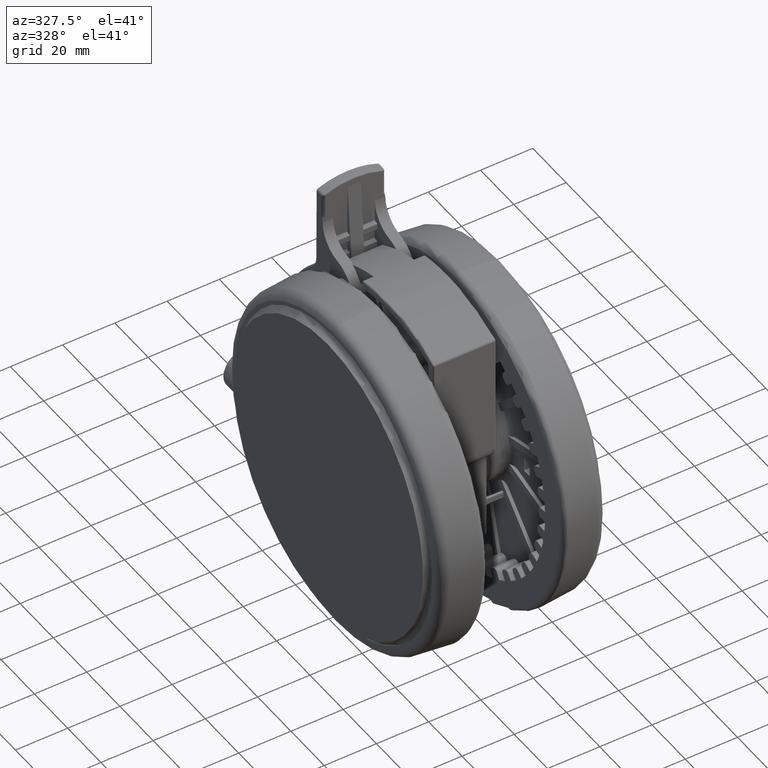
[diagram: clean part render]
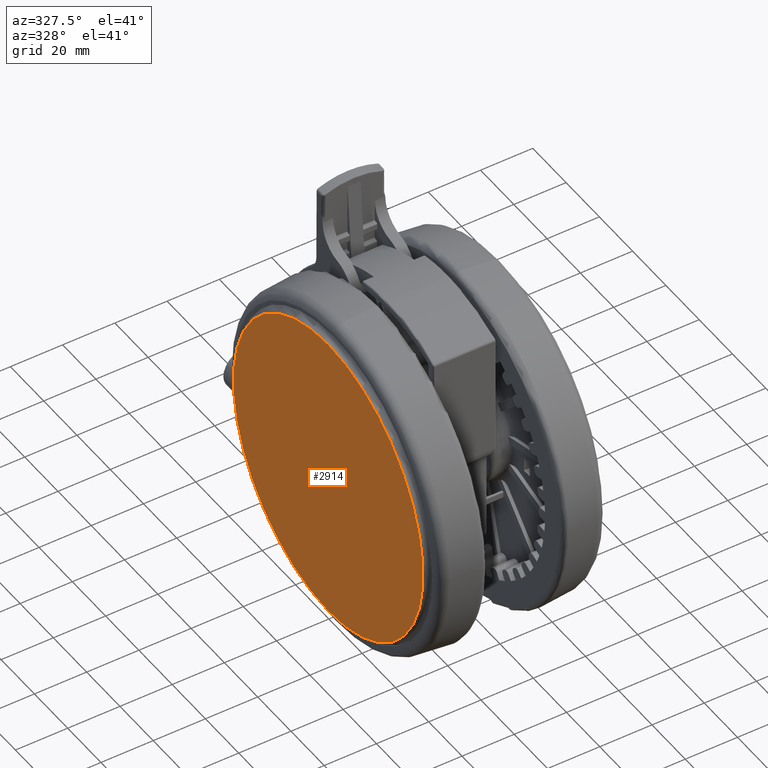
[diagram: same view with one face highlighted and labeled with its STEP entity id]
A machine part, auxiliary view. The second image highlights one B-rep face of the part: STEP entity #2914.
In plain terms, the highlighted planar face has unit normal (-1, 0, 0).
Its self-contained STEP definition (entity closure, byte-faithful):
#1118 = DIRECTION ( 'NONE',  ( -1.000000000000000000, 0.0000000000000000000, 0.0000000000000000000 ) ) ;
#1432 = FACE_OUTER_BOUND ( 'NONE', #32570, .T. ) ;
#2914 = ADVANCED_FACE ( 'NONE', ( #1432 ), #26150, .T. ) ;
#5489 = DIRECTION ( 'NONE',  ( 0.0000000000000000000, 0.0000000000000000000, -1.000000000000000000 ) ) ;
#7516 = EDGE_CURVE ( 'NONE', #37641, #30701, #28833, .T. ) ;
#20729 = DIRECTION ( 'NONE',  ( 0.0000000000000000000, 0.0000000000000000000, -1.000000000000000000 ) ) ;
#25122 = AXIS2_PLACEMENT_3D ( 'NONE', #43172, #5489, #49443 ) ;
#26150 = PLANE ( 'NONE',  #37821 ) ;
#27020 = CIRCLE ( 'NONE', #25122, 57.00000000000000000 ) ;
#28833 = CIRCLE ( 'NONE', #62778, 57.00000000000000000 ) ;
#30701 = VERTEX_POINT ( 'NONE', #46132 ) ;
#32504 = CARTESIAN_POINT ( 'NONE',  ( 0.0000000000000000000, 0.0000000000000000000, -68.20000000000008800 ) ) ;
#32570 = EDGE_LOOP ( 'NONE', ( #39375, #49202 ) ) ;
#37641 = VERTEX_POINT ( 'NONE', #53571 ) ;
#37821 = AXIS2_PLACEMENT_3D ( 'NONE', #32504, #38833, #1118 ) ;
#38833 = DIRECTION ( 'NONE',  ( 0.0000000000000000000, 0.0000000000000000000, -1.000000000000000000 ) ) ;
#39375 = ORIENTED_EDGE ( 'NONE', *, *, #52255, .T. ) ;
#43172 = CARTESIAN_POINT ( 'NONE',  ( 0.0000000000000000000, 0.0000000000000000000, -68.20000000000008800 ) ) ;
#46132 = CARTESIAN_POINT ( 'NONE',  ( 57.00000000000000000, 0.0000000000000000000, -68.20000000000008800 ) ) ;
#49202 = ORIENTED_EDGE ( 'NONE', *, *, #7516, .T. ) ;
#49443 = DIRECTION ( 'NONE',  ( -1.000000000000000000, 0.0000000000000000000, 0.0000000000000000000 ) ) ;
#52255 = EDGE_CURVE ( 'NONE', #30701, #37641, #27020, .T. ) ;
#53571 = CARTESIAN_POINT ( 'NONE',  ( -57.00000000000000000, 6.980486755139912900E-015, -68.20000000000008800 ) ) ;
#58365 = CARTESIAN_POINT ( 'NONE',  ( 0.0000000000000000000, 0.0000000000000000000, -68.20000000000008800 ) ) ;
#62778 = AXIS2_PLACEMENT_3D ( 'NONE', #58365, #20729, #64670 ) ;
#64670 = DIRECTION ( 'NONE',  ( -1.000000000000000000, 0.0000000000000000000, 0.0000000000000000000 ) ) ;